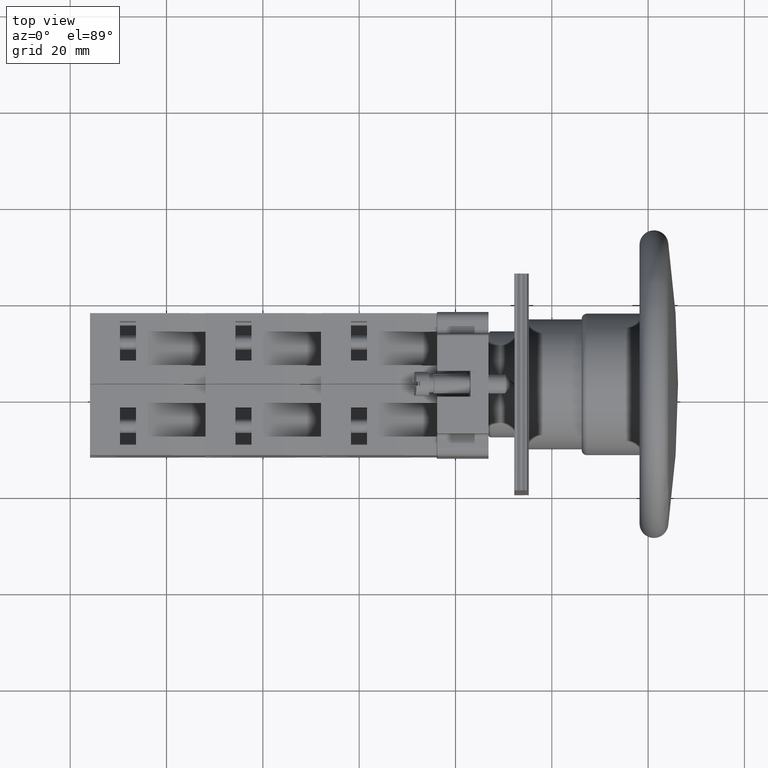
[diagram: clean part render]
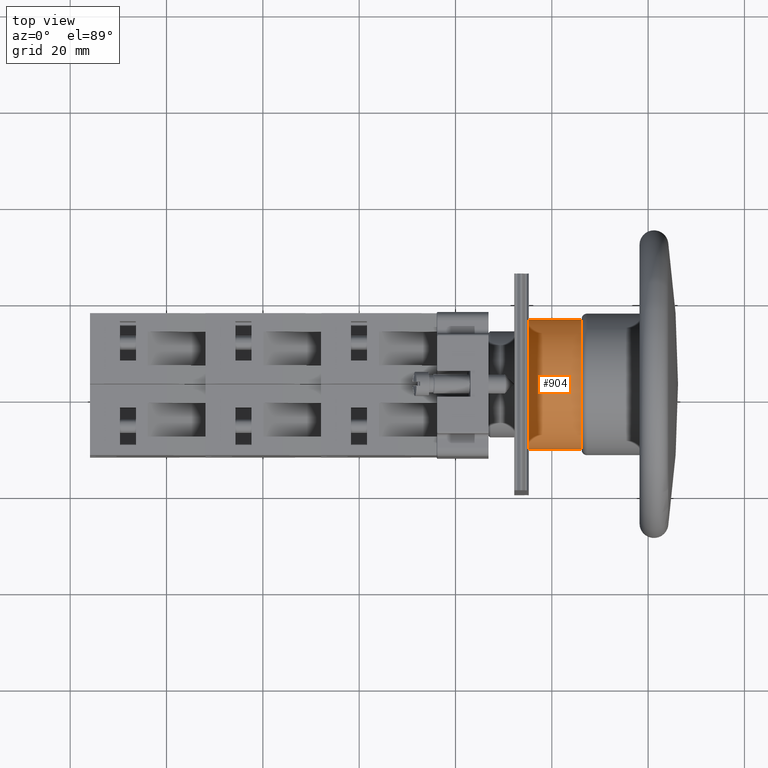
[diagram: same view with one face highlighted and labeled with its STEP entity id]
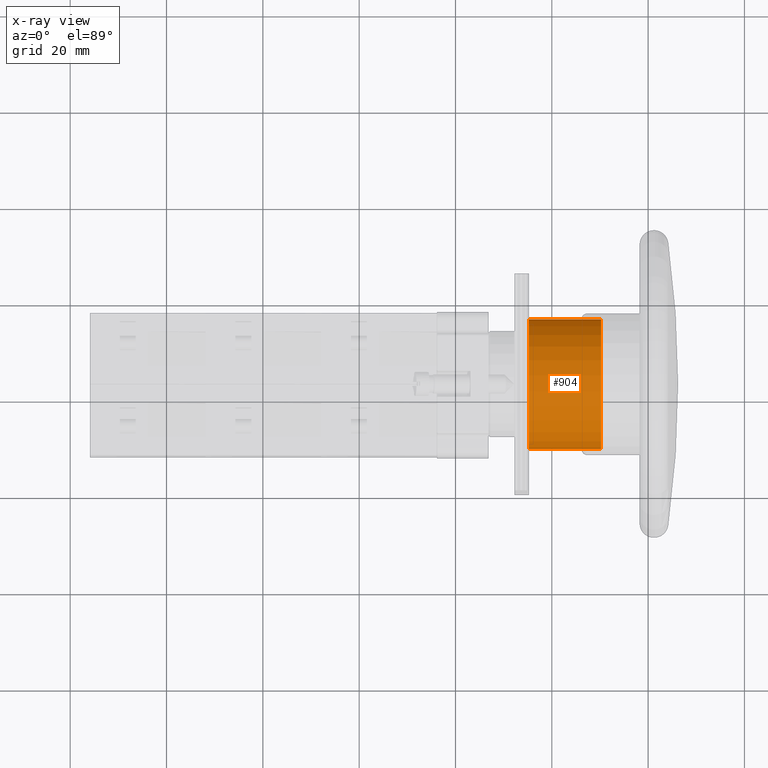
[diagram: x-ray of the same camera — body ghosted, the highlighted face saturated]
A machine part, top view. The second image highlights one B-rep face of the part: STEP entity #904.
The next image is the same camera in x-ray: the body ghosted, the highlighted face saturated — about 0% of this face is hidden behind the body in this view.
In plain terms, the highlighted cylindrical surface (bore or boss wall) has radius 13.5 mm, axis along (1, -0, 0).
Its self-contained STEP definition (entity closure, byte-faithful):
#877=CARTESIAN_POINT('',(28.205994121797815,-16.905709171661400,0.0));
#878=DIRECTION('',(1.0,-9.248989E-017,0.0));
#879=DIRECTION('',(0.0,1.0,0.0));
#880=AXIS2_PLACEMENT_3D('',#877,#878,#879);
#881=CYLINDRICAL_SURFACE('',#880,13.499999999999936);
#882=CARTESIAN_POINT('',(30.205994121797804,-3.405709171661489,0.0));
#883=VERTEX_POINT('',#882);
#884=CARTESIAN_POINT('',(30.205994121797804,-16.905709171661400,0.0));
#885=DIRECTION('',(1.0,0.0,0.0));
#886=DIRECTION('',(0.0,1.0,0.0));
#887=AXIS2_PLACEMENT_3D('',#884,#885,#886);
#888=CIRCLE('',#887,13.499999999999911);
#889=EDGE_CURVE('',#883,#883,#888,.T.);
#890=ORIENTED_EDGE('',*,*,#889,.F.);
#891=EDGE_LOOP('',(#890));
#892=FACE_OUTER_BOUND('',#891,.T.);
#893=CARTESIAN_POINT('',(15.205994121797822,-3.405709171661439,0.0));
#894=VERTEX_POINT('',#893);
#895=CARTESIAN_POINT('',(15.205994121797819,-16.905709171661400,0.0));
#896=DIRECTION('',(1.0,0.0,0.0));
#897=DIRECTION('',(0.0,1.0,0.0));
#898=AXIS2_PLACEMENT_3D('',#895,#896,#897);
#899=CIRCLE('',#898,13.499999999999961);
#900=EDGE_CURVE('',#894,#894,#899,.T.);
#901=ORIENTED_EDGE('',*,*,#900,.T.);
#902=EDGE_LOOP('',(#901));
#903=FACE_BOUND('',#902,.T.);
#904=ADVANCED_FACE('',(#892,#903),#881,.T.);